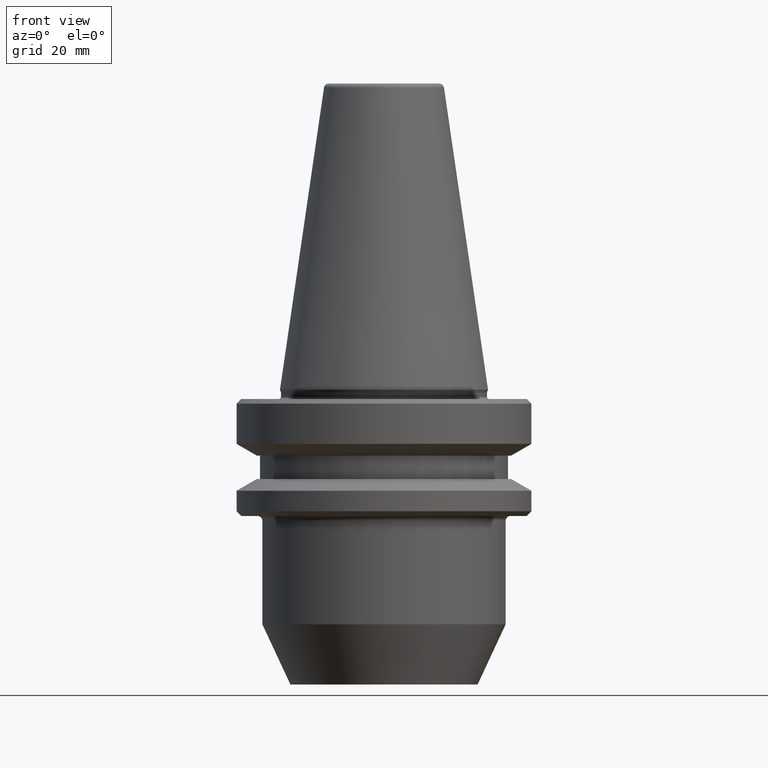
[diagram: clean part render]
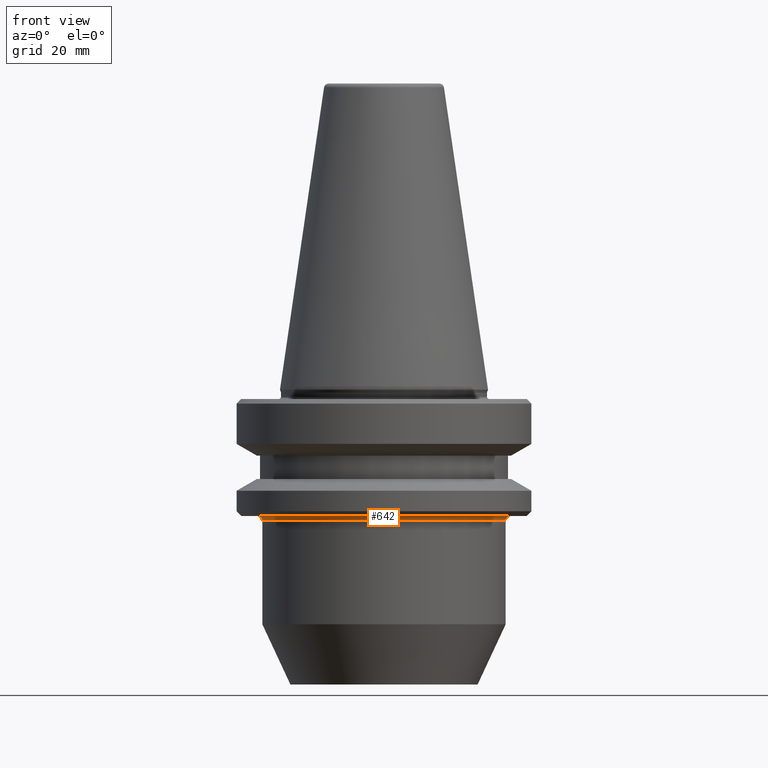
[diagram: same view with one face highlighted and labeled with its STEP entity id]
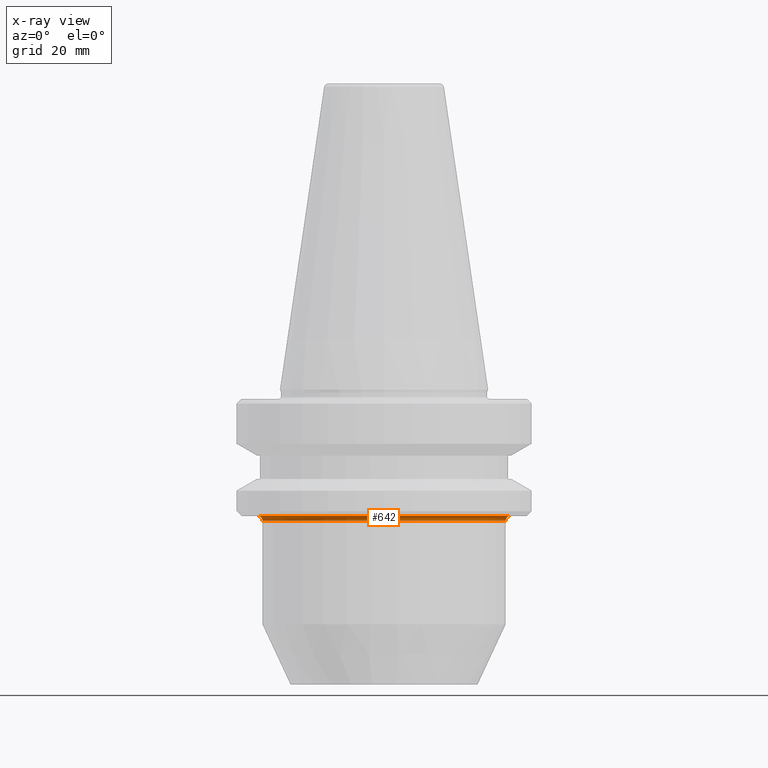
[diagram: x-ray of the same camera — body ghosted, the highlighted face saturated]
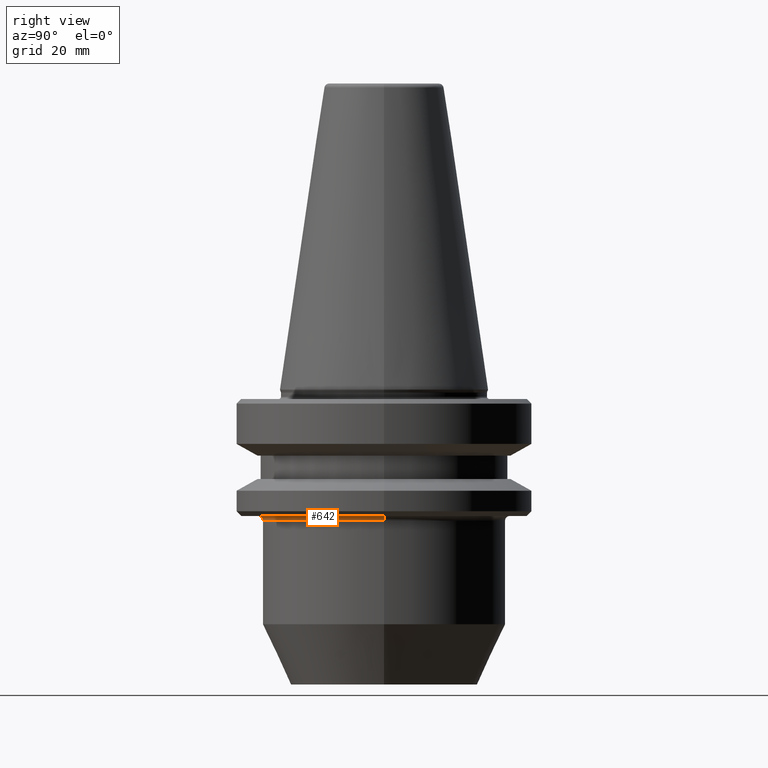
[diagram: same view with one face highlighted and labeled with its STEP entity id]
A machine part, front view. The second image highlights one B-rep face of the part: STEP entity #642.
The next image is the same camera in x-ray: the body ghosted, the highlighted face saturated — about 0% of this face is hidden behind the body in this view.
A second angle (right view) of the same face is appended — the face is thin or edge-on in the first view.
In plain terms, the highlighted toroidal blend (fillet) surface has major radius 27 mm and minor (blend) radius 1 mm.
Its self-contained STEP definition (entity closure, byte-faithful):
#8 = DIRECTION ( 'NONE',  ( 1.000000000000000000, 0.0000000000000000000, 0.0000000000000000000 ) ) ;
#33 = CIRCLE ( 'NONE', #801, 27.00000000000000000 ) ;
#49 = CARTESIAN_POINT ( 'NONE',  ( 0.0000000000000000000, 0.0000000000000000000, -26.31128678844368800 ) ) ;
#69 = EDGE_LOOP ( 'NONE', ( #820, #426, #235, #972 ) ) ;
#92 = AXIS2_PLACEMENT_3D ( 'NONE', #954, #341, #8 ) ;
#114 = CIRCLE ( 'NONE', #219, 1.000000000000000900 ) ;
#144 = AXIS2_PLACEMENT_3D ( 'NONE', #1041, #182, #368 ) ;
#182 = DIRECTION ( 'NONE',  ( -0.0000000000000000000, -0.0000000000000000000, 1.000000000000000000 ) ) ;
#189 = DIRECTION ( 'NONE',  ( 1.224646799147353200E-016, 1.000000000000000000, 0.0000000000000000000 ) ) ;
#195 = CARTESIAN_POINT ( 'NONE',  ( -27.00000000000000000, 3.306546357697854100E-015, -26.31128678844368800 ) ) ;
#217 = DIRECTION ( 'NONE',  ( 0.0000000000000000000, 0.0000000000000000000, -1.000000000000000000 ) ) ;
#219 = AXIS2_PLACEMENT_3D ( 'NONE', #680, #705, #217 ) ;
#226 = CARTESIAN_POINT ( 'NONE',  ( 27.00000000000000000, 0.0000000000000000000, -26.31128678844368800 ) ) ;
#235 = ORIENTED_EDGE ( 'NONE', *, *, #557, .T. ) ;
#248 = EDGE_CURVE ( 'NONE', #524, #304, #818, .T. ) ;
#265 = FACE_OUTER_BOUND ( 'NONE', #69, .T. ) ;
#290 = AXIS2_PLACEMENT_3D ( 'NONE', #1032, #189, #568 ) ;
#304 = VERTEX_POINT ( 'NONE', #881 ) ;
#341 = DIRECTION ( 'NONE',  ( -0.0000000000000000000, -0.0000000000000000000, 1.000000000000000000 ) ) ;
#342 = CIRCLE ( 'NONE', #144, 26.00000000000000000 ) ;
#368 = DIRECTION ( 'NONE',  ( 1.000000000000000000, 0.0000000000000000000, 0.0000000000000000000 ) ) ;
#387 = VERTEX_POINT ( 'NONE', #1022 ) ;
#419 = DIRECTION ( 'NONE',  ( 1.000000000000000000, 0.0000000000000000000, 0.0000000000000000000 ) ) ;
#426 = ORIENTED_EDGE ( 'NONE', *, *, #248, .T. ) ;
#470 = TOROIDAL_SURFACE ( 'NONE', #92, 27.00000000000000000, 1.000000000000002700 ) ;
#476 = EDGE_CURVE ( 'NONE', #1053, #387, #114, .T. ) ;
#524 = VERTEX_POINT ( 'NONE', #195 ) ;
#557 = EDGE_CURVE ( 'NONE', #304, #387, #342, .T. ) ;
#563 = DIRECTION ( 'NONE',  ( -0.0000000000000000000, -0.0000000000000000000, 1.000000000000000000 ) ) ;
#568 = DIRECTION ( 'NONE',  ( -1.000000000000000000, 1.224646799147352700E-016, 0.0000000000000000000 ) ) ;
#642 = ADVANCED_FACE ( 'NONE', ( #265 ), #470, .F. ) ;
#680 = CARTESIAN_POINT ( 'NONE',  ( 27.00000000000000000, 0.0000000000000000000, -27.31128678844368800 ) ) ;
#705 = DIRECTION ( 'NONE',  ( 0.0000000000000000000, -1.000000000000000000, 0.0000000000000000000 ) ) ;
#776 = EDGE_CURVE ( 'NONE', #524, #1053, #33, .T. ) ;
#801 = AXIS2_PLACEMENT_3D ( 'NONE', #49, #563, #419 ) ;
#818 = CIRCLE ( 'NONE', #290, 1.000000000000004400 ) ;
#820 = ORIENTED_EDGE ( 'NONE', *, *, #776, .F. ) ;
#881 = CARTESIAN_POINT ( 'NONE',  ( -26.00000000000000000, 3.184081677783118200E-015, -27.31128678844368800 ) ) ;
#954 = CARTESIAN_POINT ( 'NONE',  ( 0.0000000000000000000, 0.0000000000000000000, -27.31128678844368800 ) ) ;
#972 = ORIENTED_EDGE ( 'NONE', *, *, #476, .F. ) ;
#1022 = CARTESIAN_POINT ( 'NONE',  ( 26.00000000000000000, 0.0000000000000000000, -27.31128678844368800 ) ) ;
#1032 = CARTESIAN_POINT ( 'NONE',  ( -27.00000000000000000, 3.306546357697853700E-015, -27.31128678844368800 ) ) ;
#1041 = CARTESIAN_POINT ( 'NONE',  ( 0.0000000000000000000, 0.0000000000000000000, -27.31128678844368800 ) ) ;
#1053 = VERTEX_POINT ( 'NONE', #226 ) ;